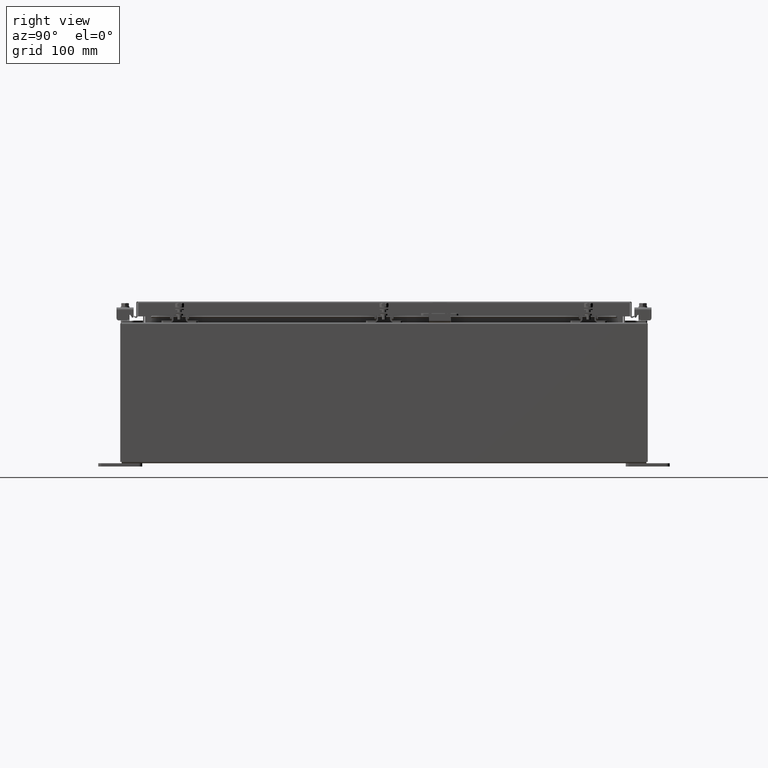
[diagram: clean part render]
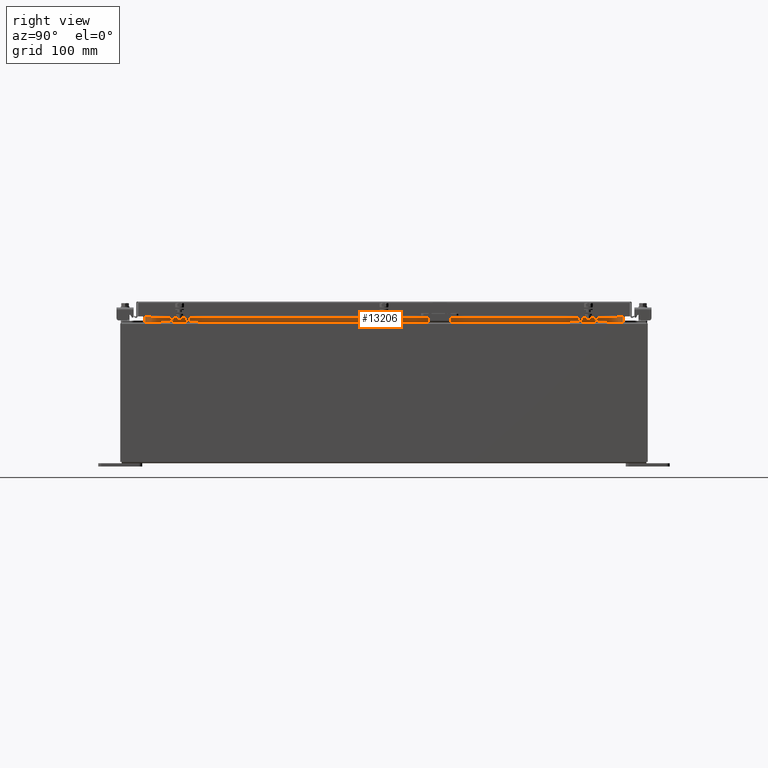
[diagram: same view with one face highlighted and labeled with its STEP entity id]
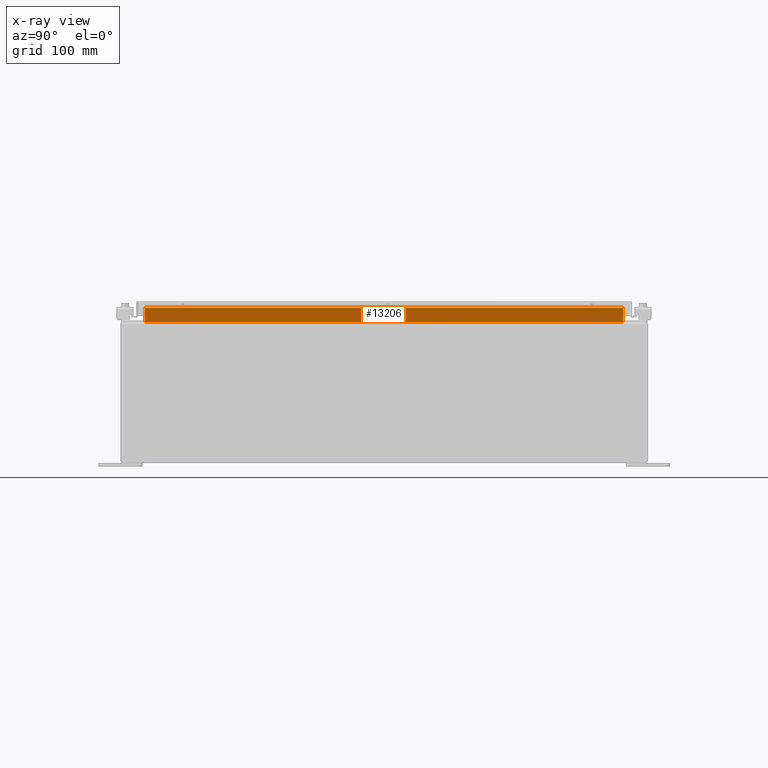
[diagram: x-ray of the same camera — body ghosted, the highlighted face saturated]
A machine part, right view. The second image highlights one B-rep face of the part: STEP entity #13206.
The next image is the same camera in x-ray: the body ghosted, the highlighted face saturated — about 0% of this face is hidden behind the body in this view.
In plain terms, the highlighted planar face has unit normal (1, 0, -0).
Its self-contained STEP definition (entity closure, byte-faithful):
#992 = CARTESIAN_POINT ( 'NONE',  ( 10.69970000000002800, 13.59375000000000200, 8.762900000000007200 ) ) ;
#1415 = VECTOR ( 'NONE', #27251, 39.37007874015748100 ) ;
#1654 = CARTESIAN_POINT ( 'NONE',  ( 10.69970000000002800, -13.59375000000000200, 8.762900000000007200 ) ) ;
#1717 = VERTEX_POINT ( 'NONE', #30701 ) ;
#2097 = VECTOR ( 'NONE', #11458, 39.37007874015748100 ) ;
#4280 = ORIENTED_EDGE ( 'NONE', *, *, #24258, .F. ) ;
#4700 = AXIS2_PLACEMENT_3D ( 'NONE', #28576, #8216, #28712 ) ;
#5890 = FACE_OUTER_BOUND ( 'NONE', #20183, .T. ) ;
#6694 = VECTOR ( 'NONE', #10463, 39.37007874015748100 ) ;
#7761 = ORIENTED_EDGE ( 'NONE', *, *, #31523, .F. ) ;
#8014 = EDGE_CURVE ( 'NONE', #1717, #31035, #14504, .T. ) ;
#8216 = DIRECTION ( 'NONE',  ( 1.000000000000000000, 0.0000000000000000000, -2.361913319930196000E-015 ) ) ;
#8954 = LINE ( 'NONE', #34928, #2097 ) ;
#10108 = LINE ( 'NONE', #36009, #1415 ) ;
#10463 = DIRECTION ( 'NONE',  ( 0.0000000000000000000, 1.000000000000000000, 0.0000000000000000000 ) ) ;
#10753 = ORIENTED_EDGE ( 'NONE', *, *, #34351, .F. ) ;
#11458 = DIRECTION ( 'NONE',  ( 2.361913319930201500E-015, -0.0000000000000000000, 1.000000000000000000 ) ) ;
#12985 = VECTOR ( 'NONE', #13243, 39.37007874015748100 ) ;
#13206 = ADVANCED_FACE ( 'NONE', ( #5890 ), #37449, .T. ) ;
#13243 = DIRECTION ( 'NONE',  ( -2.361913319930196000E-015, -0.0000000000000000000, -1.000000000000000000 ) ) ;
#13900 = LINE ( 'NONE', #33784, #12985 ) ;
#14504 = LINE ( 'NONE', #1654, #6694 ) ;
#20183 = EDGE_LOOP ( 'NONE', ( #7761, #23858, #4280, #10753 ) ) ;
#20494 = CARTESIAN_POINT ( 'NONE',  ( 10.69970000000002500, -13.59375000000000400, 7.938300000000009700 ) ) ;
#23858 = ORIENTED_EDGE ( 'NONE', *, *, #8014, .F. ) ;
#24258 = EDGE_CURVE ( 'NONE', #30207, #1717, #8954, .T. ) ;
#27251 = DIRECTION ( 'NONE',  ( 8.038541222736220000E-017, -1.000000000000000000, 1.607708244547244000E-016 ) ) ;
#28576 = CARTESIAN_POINT ( 'NONE',  ( 10.69970000000000500, 0.0000000000000000000, -2.526959394139443400E-014 ) ) ;
#28712 = DIRECTION ( 'NONE',  ( -2.361913319930196000E-015, 0.0000000000000000000, -1.000000000000000000 ) ) ;
#30207 = VERTEX_POINT ( 'NONE', #20494 ) ;
#30701 = CARTESIAN_POINT ( 'NONE',  ( 10.69970000000002800, -13.59375000000000200, 8.762900000000007200 ) ) ;
#31035 = VERTEX_POINT ( 'NONE', #992 ) ;
#31523 = EDGE_CURVE ( 'NONE', #31035, #37439, #13900, .T. ) ;
#33784 = CARTESIAN_POINT ( 'NONE',  ( 10.69970000000002500, 13.59375000000000200, 7.925300000000007100 ) ) ;
#34351 = EDGE_CURVE ( 'NONE', #37439, #30207, #10108, .T. ) ;
#34928 = CARTESIAN_POINT ( 'NONE',  ( 10.69970000000002800, -13.59375000000000200, 8.850600000000007100 ) ) ;
#35154 = CARTESIAN_POINT ( 'NONE',  ( 10.69970000000002500, 13.59375000000000400, 7.938300000000009700 ) ) ;
#36009 = CARTESIAN_POINT ( 'NONE',  ( 10.69970000000002500, 13.59375000000000200, 7.938300000000007900 ) ) ;
#37439 = VERTEX_POINT ( 'NONE', #35154 ) ;
#37449 = PLANE ( 'NONE',  #4700 ) ;